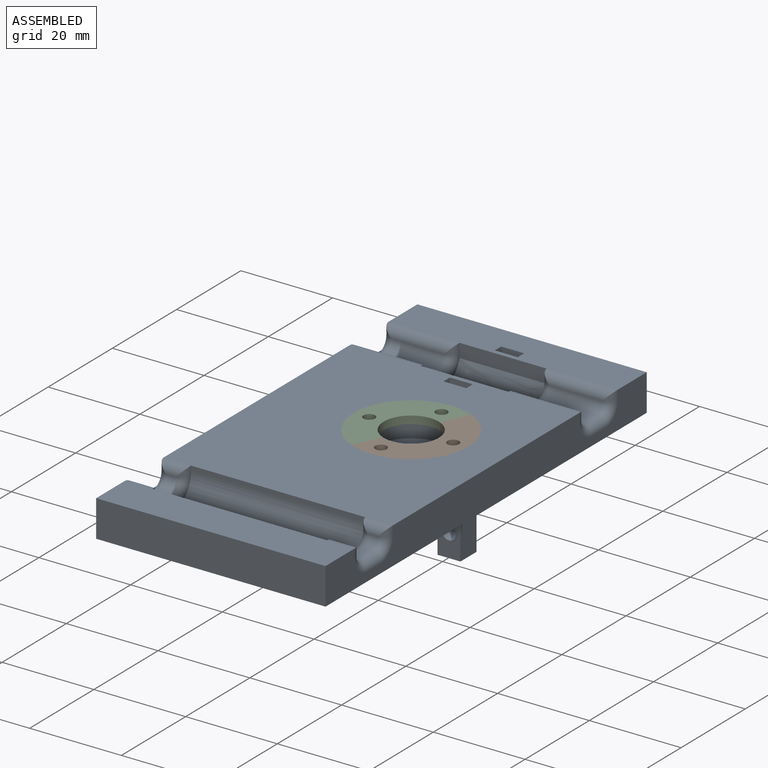
[diagram: assembled view]
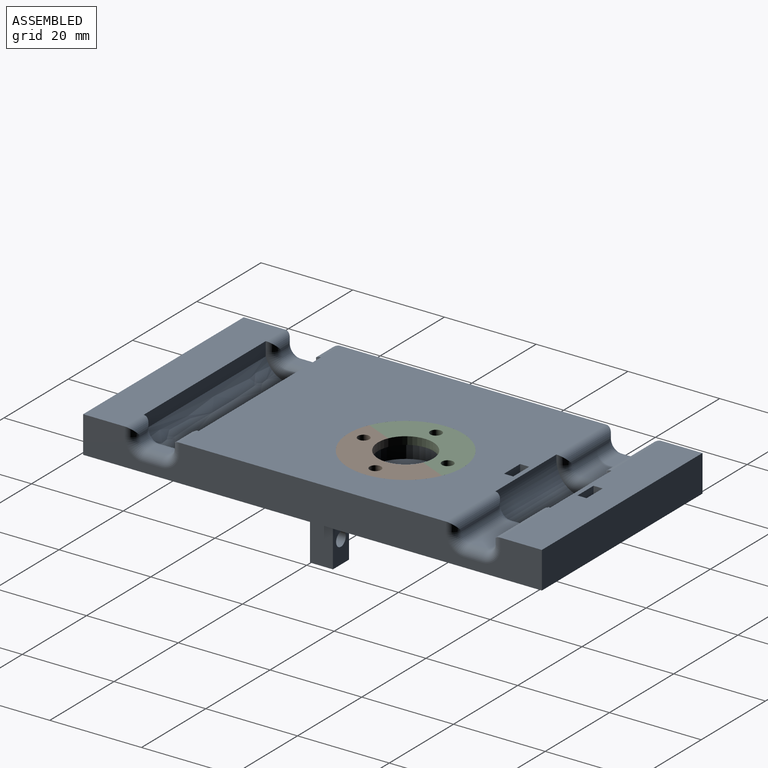
[diagram: assembled view, second angle]
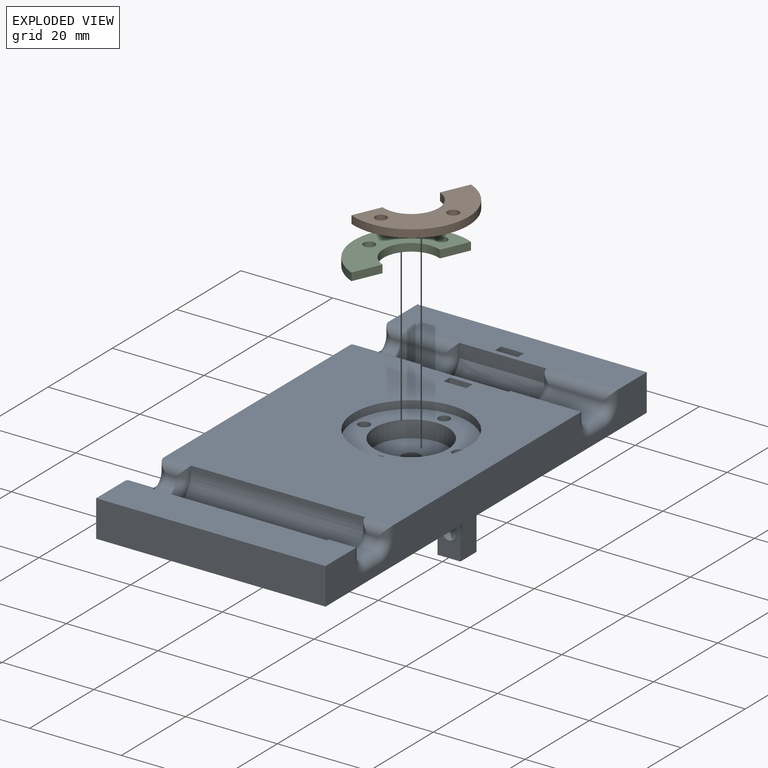
[diagram: exploded view]
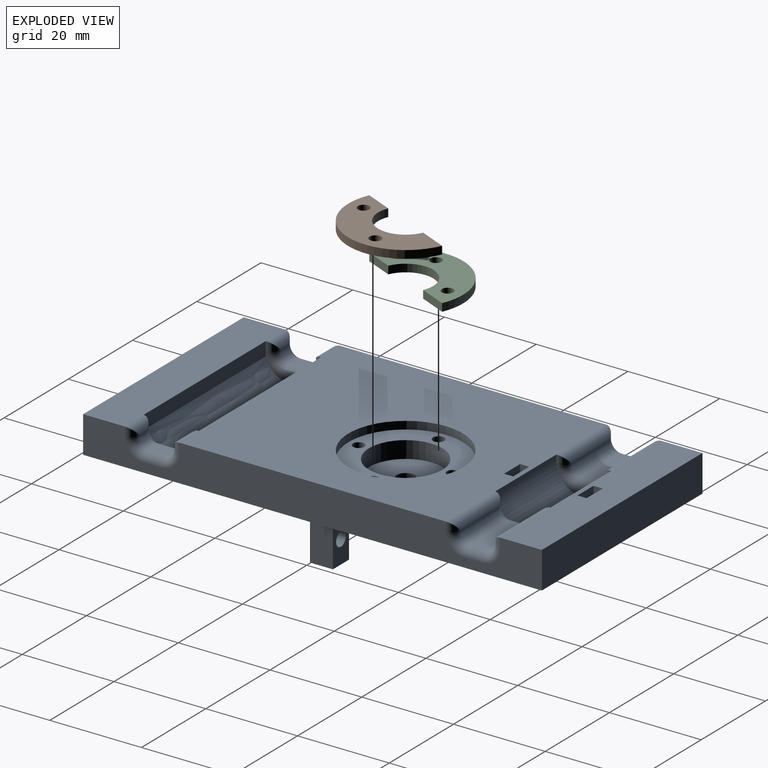
[diagram: exploded view, second angle]
ASSEMBLY  parts=3 mates=2
PART A: 123 faces, bbox 50.5x100.1x18.1 mm
  f0: plane 100x50mm, normal (0,0,-1), area 4422.3mm2, adj f8,f9,f11,f12,f13,f14,f15,f16
  f1: plane 58x50mm, normal (0,0,1), area 2399.1mm2, adj f8,f9,f25,f28,f44,f59,f63,f86
  f2: plane 50x9mm, normal (0,0,1), area 440mm2, adj f8,f9,f11,f21,f35,f77,f115,f116
  f3: cylinder r=1.5mm len=5.98mm, axis (-1,0,0), area 56.4mm2, adj f8,f108
  f4: plane 10.03x5mm, normal (1,0,0), area 6.2mm2, adj f21,f26,f27,f82,f85,f87,f96
  f5: plane 10.03x5mm, normal (-1,0,0), area 6.2mm2, adj f21,f26,f27,f34,f36,f39,f96
  f6: plane 10.03x5mm, normal (1,0,0), area 6.2mm2, adj f22,f23,f24,f68,f71,f73,f95
  f7: plane 10.03x5mm, normal (-1,0,0), area 6.2mm2, adj f22,f23,f24,f49,f52,f54,f95
  f8: plane 100x8mm, normal (-1,0,0), area 662.7mm2, adj f0,f1,f2,f3,f10,f11,f12,f61
  f9: plane 100x8mm, normal (1,0,0), area 669.7mm2, adj f0,f1,f2,f10,f11,f12,f38,f40
  f10: plane 50x9mm, normal (0,0,1), area 450mm2, adj f8,f9,f12,f22,f48,f72
  f11: plane 50x8mm, normal (0,1,0), area 400mm2, adj f0,f2,f8,f9
  f12: plane 50x8mm, normal (0,-1,0), area 400mm2, adj f0,f8,f9,f10
  f13: plane 10x5mm, normal (-1,0,0), area 50mm2, adj f0,f14,f16,f89
  f14: plane 10x5mm, normal (0,-1,0), area 42.9mm2, adj f0,f13,f15,f89,f92
  f15: plane 10x5mm, normal (1,0,0), area 50mm2, adj f0,f14,f16,f89
  f16: plane 10x5mm, normal (0,1,0), area 42.9mm2, adj f0,f13,f15,f89,f92
  f17: plane 10x5mm, normal (0,-1,0), area 42.9mm2, adj f0,f18,f20,f90,f91
  f18: plane 10x5mm, normal (1,0,0), area 50mm2, adj f0,f17,f19,f90
  f19: plane 10.38x5mm, normal (0,1,0), area 43.4mm2, adj f0,f18,f20,f90,f91,f106
  f20: plane 10.5x5.12mm, normal (-1,0,0), area 50.3mm2, adj f0,f17,f19,f90,f106
  f21: plane 19x3mm, normal (0,-1,0), area 57mm2, adj f2,f4,f5,f27,f33,f80
  f22: plane 38x3mm, normal (0,1,0), area 114mm2, adj f6,f7,f10,f24,f47,f74
  f23: plane 38x0.34mm, normal (0,0,1), area 13mm2, adj f6,f7,f24,f95
  f24: bspline ~41.8x5.66mm, area 283.8mm2, adj f6,f7,f22,f23
  f25: plane 38x1mm, normal (0,-1,0), area 38mm2, adj f1,f57,f66,f95
  f26: plane 19x0.34mm, normal (0,0,1), area 6.5mm2, adj f4,f5,f27,f96
  f27: bspline ~20.9x5.66mm, area 141.9mm2, adj f4,f5,f21,f26
  f28: plane 19x1mm, normal (0,1,0), area 19mm2, adj f1,f41,f88,f96
  f29: plane 11.5x4mm, normal (0,0,1), area 46mm2, adj f36,f37,f42,f43
  f30: plane 11.5x4mm, normal (0,0,1), area 46mm2, adj f78,f79,f84,f85
  f31: plane 4x2mm, normal (0,0,1), area 8mm2, adj f64,f65,f70,f71
  f32: plane 4x2mm, normal (0,0,1), area 8mm2, adj f51,f52,f55,f56
  f33: cylinder r=2mm len=2mm, axis (0,0,1), area 4mm2, adj f21,f34,f35
  f34: torus R=4mm, axis (-1,0,0), area 13.5mm2, adj f5,f33,f36,f37
  f35: cylinder r=2mm len=15.5mm, axis (-1,0,0), area 44.1mm2, adj f2,f33,f37,f38
  f36: cylinder r=2mm len=4mm, axis (0,1,0), area 12.6mm2, adj f5,f29,f34,f39
  f37: cylinder r=2mm len=11.5mm, axis (-1,0,0), area 36.1mm2, adj f29,f34,f35,f40
  f38: cylinder r=2mm len=2mm, axis (0,0,-1), area 4mm2, adj f9,f35,f40
  f39: torus R=4mm, axis (-1,0,0), area 12.8mm2, adj f5,f36,f41,f42,f96
  f40: torus R=4mm, axis (-1,0,0), area 13.5mm2, adj f9,f37,f38,f43
  f41: cylinder r=2mm len=2mm, axis (0,0,-1), area 4mm2, adj f28,f39,f44,f96
  f42: cylinder r=2mm len=11.5mm, axis (-1,0,0), area 36.1mm2, adj f29,f39,f44,f45
  f43: cylinder r=2mm len=4mm, axis (0,-1,0), area 12.6mm2, adj f9,f29,f40,f45
  f44: cylinder r=2mm len=15.5mm, axis (-1,0,0), area 44.1mm2, adj f1,f41,f42,f46
  f45: torus R=4mm, axis (-1,0,0), area 13.5mm2, adj f9,f42,f43,f46
  f46: cylinder r=2mm len=2mm, axis (0,0,1), area 4mm2, adj f9,f44,f45
  f47: cylinder r=2mm len=2mm, axis (0,0,-1), area 4mm2, adj f22,f48,f49
  f48: cylinder r=2mm len=6mm, axis (-1,0,0), area 14.3mm2, adj f10,f47,f50,f51
  f49: torus R=4mm, axis (-1,0,0), area 13.5mm2, adj f7,f47,f51,f52
  f50: cylinder r=2mm len=2mm, axis (0,0,1), area 4mm2, adj f9,f48,f53
  f51: cylinder r=2mm len=2mm, axis (-1,0,0), area 6.3mm2, adj f32,f48,f49,f53
  f52: cylinder r=2mm len=4mm, axis (0,1,0), area 12.6mm2, adj f7,f32,f49,f54
  f53: torus R=4mm, axis (-1,0,0), area 13.5mm2, adj f9,f50,f51,f55
  f54: torus R=4mm, axis (-1,0,0), area 12.8mm2, adj f7,f52,f56,f57,f95
  f55: cylinder r=2mm len=4mm, axis (0,-1,0), area 12.6mm2, adj f9,f32,f53,f58
  f56: cylinder r=2mm len=2mm, axis (-1,0,0), area 6.3mm2, adj f32,f54,f58,f59
  f57: cylinder r=2mm len=2mm, axis (0,0,1), area 4mm2, adj f25,f54,f59,f95
  f58: torus R=4mm, axis (-1,0,0), area 13.5mm2, adj f9,f55,f56,f60
  f59: cylinder r=2mm len=6mm, axis (-1,0,0), area 14.3mm2, adj f1,f56,f57,f60
  f60: cylinder r=2mm len=2mm, axis (0,0,-1), area 4mm2, adj f9,f58,f59
  f61: cylinder r=2mm len=2mm, axis (0,0,1), area 4mm2, adj f8,f62,f63
  f62: torus R=4mm, axis (-1,0,0), area 13.5mm2, adj f8,f61,f64,f65
  f63: cylinder r=2mm len=6mm, axis (-1,0,0), area 14.3mm2, adj f1,f61,f65,f66
  f64: cylinder r=2mm len=4mm, axis (0,1,0), area 12.6mm2, adj f8,f31,f62,f67
  f65: cylinder r=2mm len=2mm, axis (-1,0,0), area 6.3mm2, adj f31,f62,f63,f68
  f66: cylinder r=2mm len=2mm, axis (0,0,-1), area 4mm2, adj f25,f63,f68,f95
  f67: torus R=4mm, axis (-1,0,0), area 13.5mm2, adj f8,f64,f69,f70
  f68: torus R=4mm, axis (-1,0,0), area 12.8mm2, adj f6,f65,f66,f71,f95
  f69: cylinder r=2mm len=2mm, axis (0,0,-1), area 4mm2, adj f8,f67,f72
  f70: cylinder r=2mm len=2mm, axis (-1,0,0), area 6.3mm2, adj f31,f67,f72,f73
  f71: cylinder r=2mm len=4mm, axis (0,-1,0), area 12.6mm2, adj f6,f31,f68,f73
  f72: cylinder r=2mm len=6mm, axis (-1,0,0), area 14.3mm2, adj f10,f69,f70,f74
  f73: torus R=4mm, axis (-1,0,0), area 13.5mm2, adj f6,f70,f71,f74
  f74: cylinder r=2mm len=2mm, axis (0,0,1), area 4mm2, adj f22,f72,f73
  f75: cylinder r=2mm len=2mm, axis (0,0,1), area 4mm2, adj f8,f76,f77
  f76: torus R=4mm, axis (-1,0,0), area 13.5mm2, adj f8,f75,f78,f79
  f77: cylinder r=2mm len=15.5mm, axis (-1,0,0), area 44.1mm2, adj f2,f75,f79,f80
  f78: cylinder r=2mm len=4mm, axis (0,1,0), area 12.6mm2, adj f8,f30,f76,f81
  f79: cylinder r=2mm len=11.5mm, axis (-1,0,0), area 36.1mm2, adj f30,f76,f77,f82
  f80: cylinder r=2mm len=2mm, axis (0,0,-1), area 4mm2, adj f21,f77,f82
  f81: torus R=4mm, axis (-1,0,0), area 13.5mm2, adj f8,f78,f83,f84
  f82: torus R=4mm, axis (-1,0,0), area 13.5mm2, adj f4,f79,f80,f85
  f83: cylinder r=2mm len=2mm, axis (0,0,-1), area 4mm2, adj f8,f81,f86
  f84: cylinder r=2mm len=11.5mm, axis (-1,0,0), area 36.1mm2, adj f30,f81,f86,f87
  f85: cylinder r=2mm len=4mm, axis (0,-1,0), area 12.6mm2, adj f4,f30,f82,f87
  f86: cylinder r=2mm len=15.5mm, axis (-1,0,0), area 44.1mm2, adj f1,f83,f84,f88
  f87: torus R=4mm, axis (-1,0,0), area 12.8mm2, adj f4,f84,f85,f88,f96
  f88: cylinder r=2mm len=2mm, axis (0,0,1), area 4mm2, adj f28,f86,f87,f96
  f89: plane 5x5mm, normal (0,0,-1), area 25mm2, adj f13,f14,f15,f16
  f90: plane 5x5mm, normal (0,0,-1), area 25mm2, adj f17,f18,f19,f20
  f91: cylinder r=1.5mm len=5mm, axis (0,1,0), area 47.1mm2, adj f17,f19
  f92: cylinder r=1.5mm len=5mm, axis (0,1,0), area 47.1mm2, adj f14,f16
  f93: cylinder r=2.01mm len=4.02mm, axis (0,0,-1), area 32.8mm2, adj f0,f99
  f94: cylinder r=8mm len=16mm, axis (0,0,1), area 186mm2, adj f98,f99
  f95: cylinder r=6mm len=38mm, axis (1,0,0), area 358.2mm2, adj f6,f7,f23,f25,f54,f57,f66,f68
  f96: cylinder r=6mm len=19mm, axis (-1,0,0), area 179.1mm2, adj f4,f5,f26,f28,f39,f41,f87,f88
  f97: cylinder r=12.5mm len=25mm, axis (0,0,1), area 133.5mm2, adj f1,f98
  f98: plane 25x25mm, normal (0,0,1), area 270.2mm2, adj f94,f97,f100,f101,f102,f103
  f99: plane 16x16mm, normal (0,0,1), area 188.4mm2, adj f93,f94
  f100: cylinder r=1.25mm len=2.5mm, axis (0,0,1), area 10.2mm2, adj f98,f107
  f101: cylinder r=1.25mm len=2.5mm, axis (0,0,1), area 10.2mm2, adj f98,f106
  f102: cylinder r=1.25mm len=2.5mm, axis (0,0,1), area 10.2mm2, adj f98,f105
  f103: cylinder r=1.25mm len=2.5mm, axis (0,0,1), area 10.2mm2, adj f98,f104
  f104: torus R=6.25mm, axis (0,0,1), area 151.3mm2, adj f0,f103
  f105: torus R=6.25mm, axis (0,0,1), area 151.3mm2, adj f0,f102
  f106: torus R=6.25mm, axis (0,0,1), area 147.5mm2, adj f0,f19,f20,f101
  f107: torus R=6.25mm, axis (0,0,1), area 151.3mm2, adj f0,f100
  f108: plane 6.1x4mm, normal (1,0,0), area 17.3mm2, adj f0,f3,f110,f111,f112
  f109: plane 6.1x4mm, normal (-1,0,0), area 17.3mm2, adj f0,f110,f111,f112,f114
  f110: plane 6.1x2mm, normal (0,1,0), area 12.2mm2, adj f0,f108,f109,f112
  f111: plane 6.1x2mm, normal (0,-1,0), area 12.2mm2, adj f0,f108,f109,f112
  f112: plane 4x2mm, normal (0,0,-1), area 8mm2, adj f108,f109,f110,f111
  f113: plane 3x3mm, normal (-1,0,0), area 7.1mm2, adj f114
  f114: cylinder r=1.5mm len=12.22mm, axis (-1,0,0), area 115.2mm2, adj f109,f113
  f115: plane 8x5mm, normal (0,-1,0), area 40mm2, adj f0,f2,f116,f118
  f116: plane 8x2mm, normal (1,0,0), area 16mm2, adj f0,f2,f115,f117
  f117: plane 8x5mm, normal (0,1,0), area 40mm2, adj f0,f2,f116,f118
  f118: plane 8x2mm, normal (-1,0,0), area 16mm2, adj f0,f2,f115,f117
  f119: plane 8x5mm, normal (0,-1,0), area 40mm2, adj f0,f1,f120,f122
  f120: plane 8x2mm, normal (1,0,0), area 16mm2, adj f0,f1,f119,f121
  f121: plane 8x5mm, normal (0,1,0), area 40mm2, adj f0,f1,f120,f122
  f122: plane 8x2mm, normal (-1,0,0), area 16mm2, adj f0,f1,f119,f121
PART B: 8 faces, bbox 12.5x25x1.7 mm
  f0: plane 6.5x1.7mm, normal (-1,0,0), area 11.1mm2, adj f2,f3,f4,f5
  f1: plane 6.5x1.7mm, normal (-1,0,0), area 11.1mm2, adj f2,f3,f4,f5
  f2: cylinder r=6mm len=12mm, axis (0,0,-1), area 32mm2, adj f0,f1,f3,f4
  f3: plane 25x12.5mm, normal (0,0,1), area 179.1mm2, adj f0,f1,f2,f5,f6,f7
  f4: plane 25x12.5mm, normal (0,0,-1), area 179.1mm2, adj f0,f1,f2,f5,f6,f7
  f5: cylinder r=12.5mm len=25mm, axis (0,0,-1), area 66.8mm2, adj f0,f1,f3,f4
  f6: cylinder r=1.25mm len=2.5mm, axis (0,0,1), area 13.4mm2, adj f3,f4
  f7: cylinder r=1.25mm len=2.5mm, axis (0,0,1), area 13.4mm2, adj f3,f4
PART C: same geometry as B
PLACE A t=(-65.99,88.11,-19.32)mm fixed
PLACE B rot(axis=(0,0,-1),23.7deg) t=(-76.39,61.83,-13.02)mm
PLACE C rot(axis=(0,0,1),156.3deg) t=(-134.25,-186.12,-13.02)mm
MATE revolute C.f2 <-> A.f93  axis (0,0,1) through (-105.32,-62.14,-11.32)mm
MATE fastened B.f1 <-> C.f0  axis (-0.92,0.4,0) through (-101.6,-53.67,-12.17)mm
